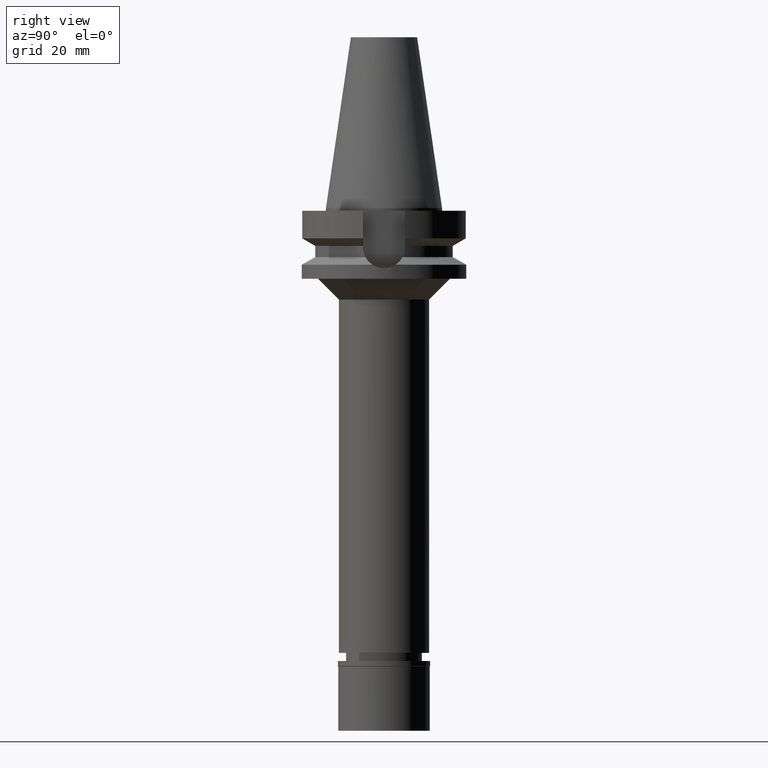
[diagram: clean part render]
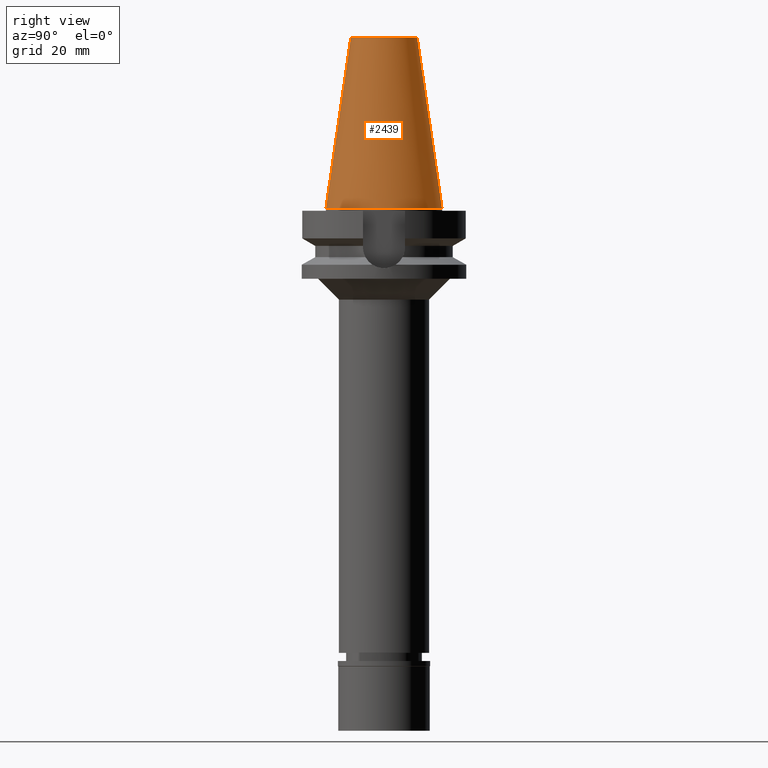
[diagram: same view with one face highlighted and labeled with its STEP entity id]
A machine part, right view. The second image highlights one B-rep face of the part: STEP entity #2439.
In plain terms, the highlighted conical surface has half-angle 8.297 deg.
Its self-contained STEP definition (entity closure, byte-faithful):
#77 = VECTOR ( 'NONE', #2632, 1000.000000000000114 ) ;
#84 = DIRECTION ( 'NONE',  ( 0.0000000000000000000, 0.0000000000000000000, -1.000000000000000000 ) ) ;
#203 = LINE ( 'NONE', #1181, #77 ) ;
#221 = DIRECTION ( 'NONE',  ( 0.0000000000000000000, 1.000000000000000000, 0.0000000000000000000 ) ) ;
#298 = EDGE_CURVE ( 'NONE', #3031, #2914, #2010, .T. ) ;
#377 = CIRCLE ( 'NONE', #1862, 22.22500000000000142 ) ;
#390 = VERTEX_POINT ( 'NONE', #2193 ) ;
#462 = DIRECTION ( 'NONE',  ( 0.0000000000000000000, 0.0000000000000000000, -1.000000000000000000 ) ) ;
#476 = EDGE_CURVE ( 'NONE', #390, #1717, #377, .T. ) ;
#764 = DIRECTION ( 'NONE',  ( 0.0000000000000000000, -1.000000000000000000, 0.0000000000000000000 ) ) ;
#972 = EDGE_LOOP ( 'NONE', ( #1824, #1999, #1904, #2790 ) ) ;
#975 = EDGE_CURVE ( 'NONE', #2914, #1717, #203, .T. ) ;
#1103 = EDGE_CURVE ( 'NONE', #3031, #390, #2779, .T. ) ;
#1132 = DIRECTION ( 'NONE',  ( 0.0000000000000000000, 0.1443043893539925626, -0.9895333461855498891 ) ) ;
#1181 = CARTESIAN_POINT ( 'NONE',  ( 0.0000000000000000000, -12.68766899429999917, 65.40000000000000568 ) ) ;
#1196 = VECTOR ( 'NONE', #1132, 1000.000000000000114 ) ;
#1382 = CARTESIAN_POINT ( 'NONE',  ( 0.0000000000000000000, 0.0000000000000000000, 65.40000000000000568 ) ) ;
#1537 = FACE_OUTER_BOUND ( 'NONE', #972, .T. ) ;
#1716 = CARTESIAN_POINT ( 'NONE',  ( 0.0000000000000000000, -12.68766899429999917, 65.40000000000000568 ) ) ;
#1717 = VERTEX_POINT ( 'NONE', #1853 ) ;
#1720 = CARTESIAN_POINT ( 'NONE',  ( 0.0000000000000000000, 0.0000000000000000000, 32.70000000000000284 ) ) ;
#1824 = ORIENTED_EDGE ( 'NONE', *, *, #298, .T. ) ;
#1853 = CARTESIAN_POINT ( 'NONE',  ( 0.0000000000000000000, -22.22500000000000142, 0.0000000000000000000 ) ) ;
#1862 = AXIS2_PLACEMENT_3D ( 'NONE', #2423, #462, #221 ) ;
#1904 = ORIENTED_EDGE ( 'NONE', *, *, #476, .F. ) ;
#1999 = ORIENTED_EDGE ( 'NONE', *, *, #975, .T. ) ;
#2010 = CIRCLE ( 'NONE', #2792, 12.68766899429999917 ) ;
#2072 = DIRECTION ( 'NONE',  ( 0.0000000000000000000, 1.000000000000000000, 0.0000000000000000000 ) ) ;
#2135 = DIRECTION ( 'NONE',  ( 0.0000000000000000000, 0.0000000000000000000, -1.000000000000000000 ) ) ;
#2193 = CARTESIAN_POINT ( 'NONE',  ( 0.0000000000000000000, 22.22500000000000142, 4.263256414560999963E-14 ) ) ;
#2389 = CONICAL_SURFACE ( 'NONE', #3035, 17.45633449714999941, 0.1448099680379422438 ) ;
#2423 = CARTESIAN_POINT ( 'NONE',  ( 0.0000000000000000000, 0.0000000000000000000, 0.0000000000000000000 ) ) ;
#2439 = ADVANCED_FACE ( 'NONE', ( #1537 ), #2389, .T. ) ;
#2632 = DIRECTION ( 'NONE',  ( 0.0000000000000000000, -0.1443043893539925626, -0.9895333461855498891 ) ) ;
#2716 = CARTESIAN_POINT ( 'NONE',  ( 0.0000000000000000000, 12.68766899429999917, 65.40000000000000568 ) ) ;
#2779 = LINE ( 'NONE', #3059, #1196 ) ;
#2790 = ORIENTED_EDGE ( 'NONE', *, *, #1103, .F. ) ;
#2792 = AXIS2_PLACEMENT_3D ( 'NONE', #1382, #2135, #2072 ) ;
#2914 = VERTEX_POINT ( 'NONE', #1716 ) ;
#3031 = VERTEX_POINT ( 'NONE', #2716 ) ;
#3035 = AXIS2_PLACEMENT_3D ( 'NONE', #1720, #84, #764 ) ;
#3059 = CARTESIAN_POINT ( 'NONE',  ( 0.0000000000000000000, 12.68766899429999917, 65.40000000000000568 ) ) ;